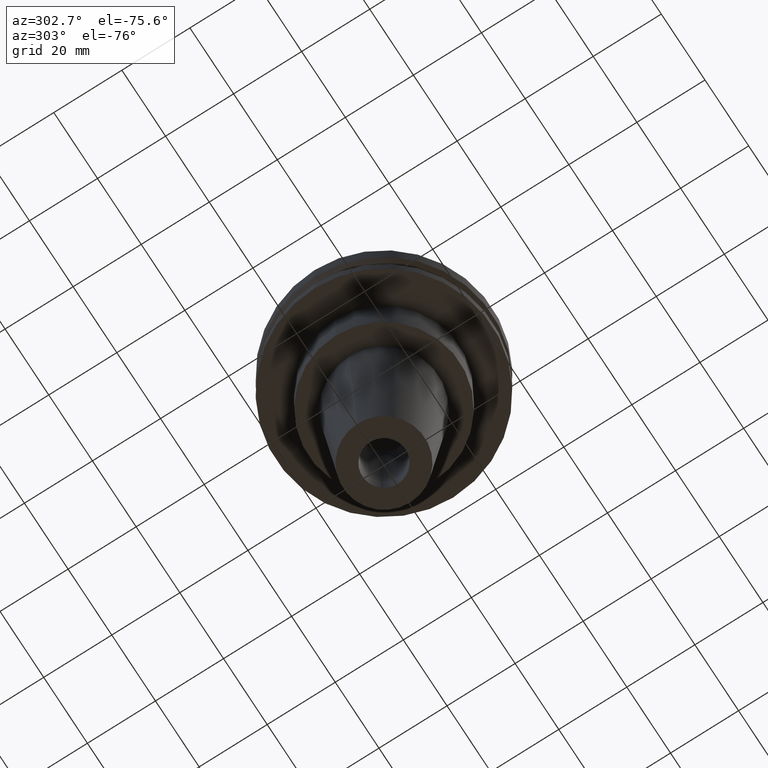
[diagram: clean part render]
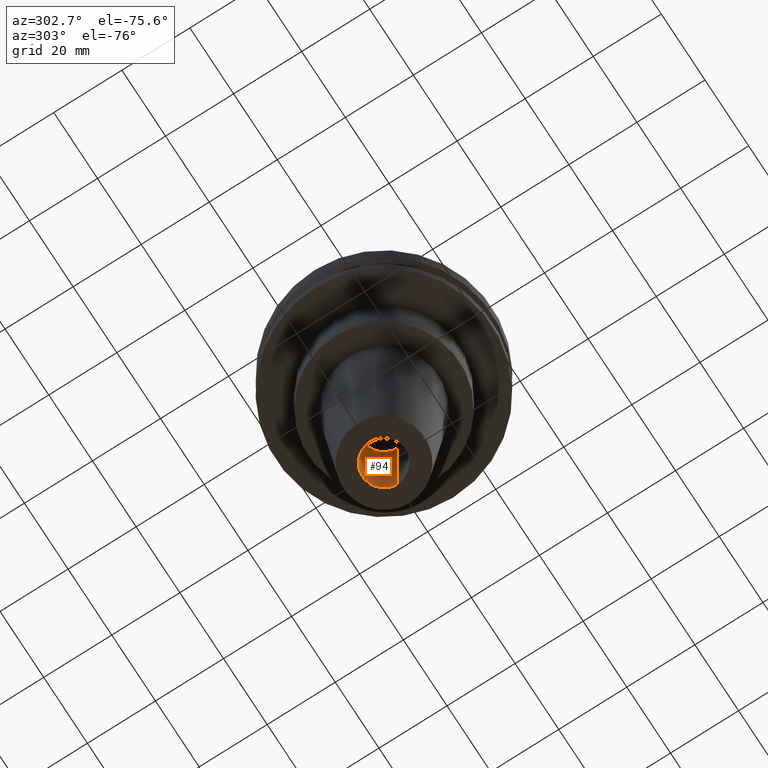
[diagram: same view with one face highlighted and labeled with its STEP entity id]
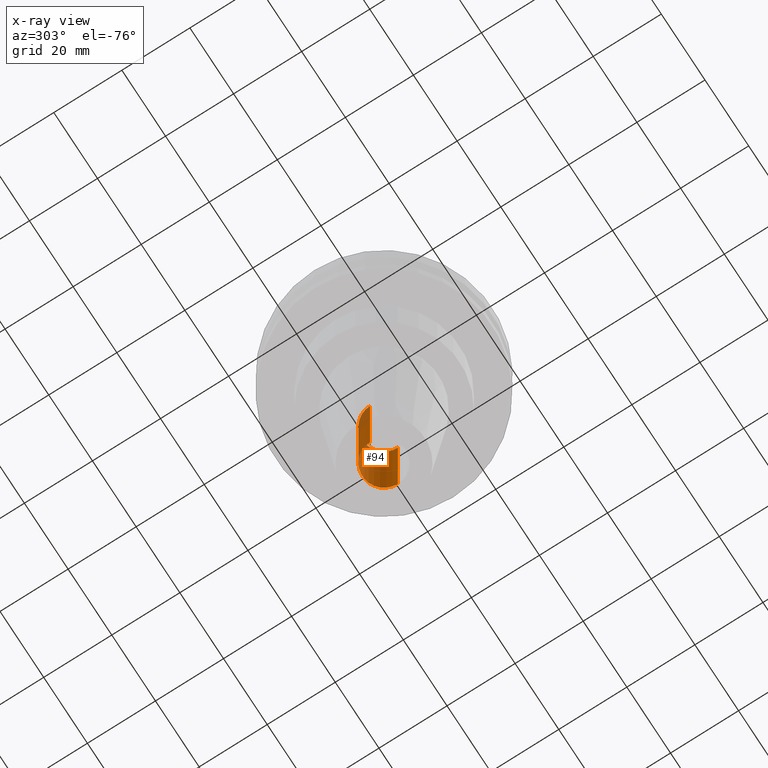
[diagram: x-ray of the same camera — body ghosted, the highlighted face saturated]
A machine part, auxiliary view. The second image highlights one B-rep face of the part: STEP entity #94.
The next image is the same camera in x-ray: the body ghosted, the highlighted face saturated — about 10% of this face is hidden behind the body in this view.
In plain terms, the highlighted cylindrical surface (edge-blend (fillet) strip) has radius 6.35 mm, axis along (-0, -0, 1).
Its self-contained STEP definition (entity closure, byte-faithful):
#17 = VECTOR ( 'NONE', #700, 1000.000000000000000 ) ;
#29 = VERTEX_POINT ( 'NONE', #834 ) ;
#50 = EDGE_CURVE ( 'NONE', #372, #656, #250, .T. ) ;
#58 = ORIENTED_EDGE ( 'NONE', *, *, #60, .F. ) ;
#60 = EDGE_CURVE ( 'NONE', #372, #29, #399, .T. ) ;
#80 = AXIS2_PLACEMENT_3D ( 'NONE', #549, #747, #628 ) ;
#94 = ADVANCED_FACE ( 'NONE', ( #239 ), #781, .F. ) ;
#113 = DIRECTION ( 'NONE',  ( -0.000000000000000000, -0.000000000000000000, 1.000000000000000000 ) ) ;
#117 = CARTESIAN_POINT ( 'NONE',  ( 0.000000000000000000, 0.000000000000000000, 0.000000000000000000 ) ) ;
#173 = DIRECTION ( 'NONE',  ( -0.000000000000000000, -0.000000000000000000, 1.000000000000000000 ) ) ;
#205 = CIRCLE ( 'NONE', #80, 6.349999999999994316 ) ;
#239 = FACE_OUTER_BOUND ( 'NONE', #555, .T. ) ;
#250 = LINE ( 'NONE', #318, #427 ) ;
#318 = CARTESIAN_POINT ( 'NONE',  ( 6.349999999999996980, 0.000000000000000000, 0.000000000000000000 ) ) ;
#323 = DIRECTION ( 'NONE',  ( -0.000000000000000000, -0.000000000000000000, 1.000000000000000000 ) ) ;
#325 = CARTESIAN_POINT ( 'NONE',  ( 6.349999999999994316, 0.000000000000000000, -52.89999999999999858 ) ) ;
#372 = VERTEX_POINT ( 'NONE', #819 ) ;
#399 = CIRCLE ( 'NONE', #743, 6.349999999999999645 ) ;
#427 = VECTOR ( 'NONE', #173, 1000.000000000000000 ) ;
#431 = EDGE_CURVE ( 'NONE', #29, #524, #572, .T. ) ;
#465 = ORIENTED_EDGE ( 'NONE', *, *, #804, .T. ) ;
#474 = AXIS2_PLACEMENT_3D ( 'NONE', #117, #113, #499 ) ;
#499 = DIRECTION ( 'NONE',  ( 1.000000000000000000, 0.000000000000000000, 0.000000000000000000 ) ) ;
#524 = VERTEX_POINT ( 'NONE', #707 ) ;
#549 = CARTESIAN_POINT ( 'NONE',  ( 0.000000000000000000, 0.000000000000000000, -52.89999999999999858 ) ) ;
#555 = EDGE_LOOP ( 'NONE', ( #599, #58, #646, #465 ) ) ;
#572 = LINE ( 'NONE', #765, #17 ) ;
#599 = ORIENTED_EDGE ( 'NONE', *, *, #431, .F. ) ;
#628 = DIRECTION ( 'NONE',  ( 1.000000000000000000, 0.000000000000000000, 0.000000000000000000 ) ) ;
#646 = ORIENTED_EDGE ( 'NONE', *, *, #50, .T. ) ;
#656 = VERTEX_POINT ( 'NONE', #325 ) ;
#700 = DIRECTION ( 'NONE',  ( -0.000000000000000000, -0.000000000000000000, 1.000000000000000000 ) ) ;
#701 = DIRECTION ( 'NONE',  ( 1.000000000000000000, 0.000000000000000000, 0.000000000000000000 ) ) ;
#707 = CARTESIAN_POINT ( 'NONE',  ( -6.349999999999994316, 7.776507174585688219E-16, -52.89999999999999858 ) ) ;
#743 = AXIS2_PLACEMENT_3D ( 'NONE', #776, #323, #701 ) ;
#747 = DIRECTION ( 'NONE',  ( -0.000000000000000000, -0.000000000000000000, 1.000000000000000000 ) ) ;
#765 = CARTESIAN_POINT ( 'NONE',  ( -6.349999999999996980, 7.776507174585690191E-16, 0.000000000000000000 ) ) ;
#776 = CARTESIAN_POINT ( 'NONE',  ( 0.000000000000000000, 0.000000000000000000, -88.89999999999999147 ) ) ;
#781 = CYLINDRICAL_SURFACE ( 'NONE', #474, 6.349999999999996980 ) ;
#804 = EDGE_CURVE ( 'NONE', #656, #524, #205, .T. ) ;
#819 = CARTESIAN_POINT ( 'NONE',  ( 6.349999999999999645, 0.000000000000000000, -88.89999999999999147 ) ) ;
#834 = CARTESIAN_POINT ( 'NONE',  ( -6.349999999999999645, 7.776507174585693149E-16, -88.89999999999999147 ) ) ;